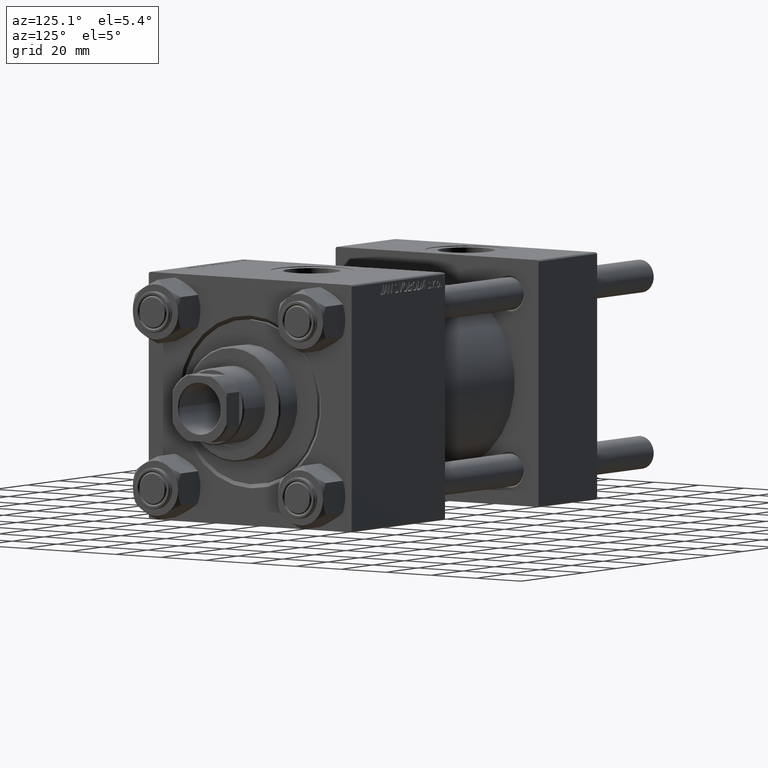
[diagram: clean part render]
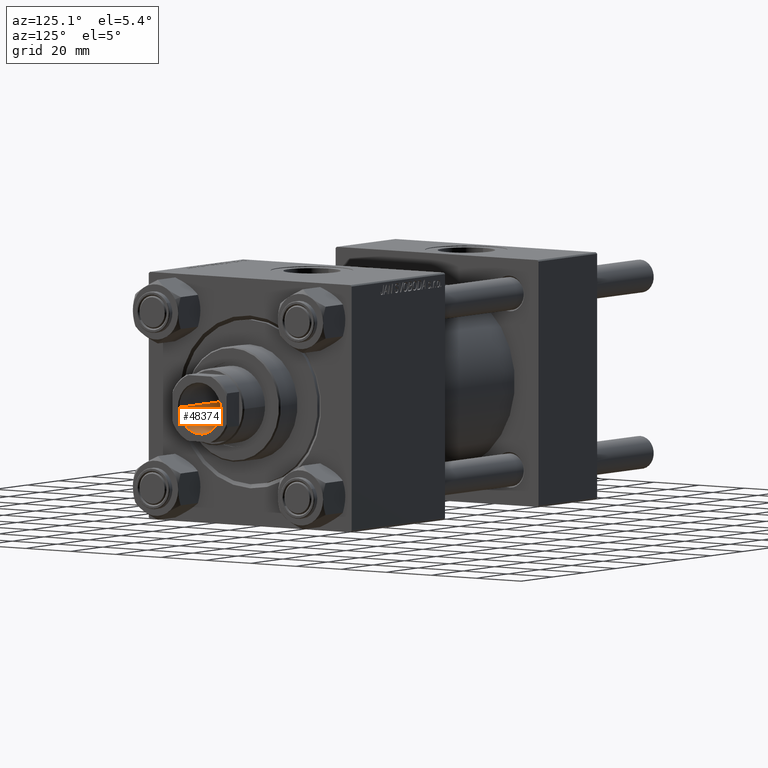
[diagram: same view with one face highlighted and labeled with its STEP entity id]
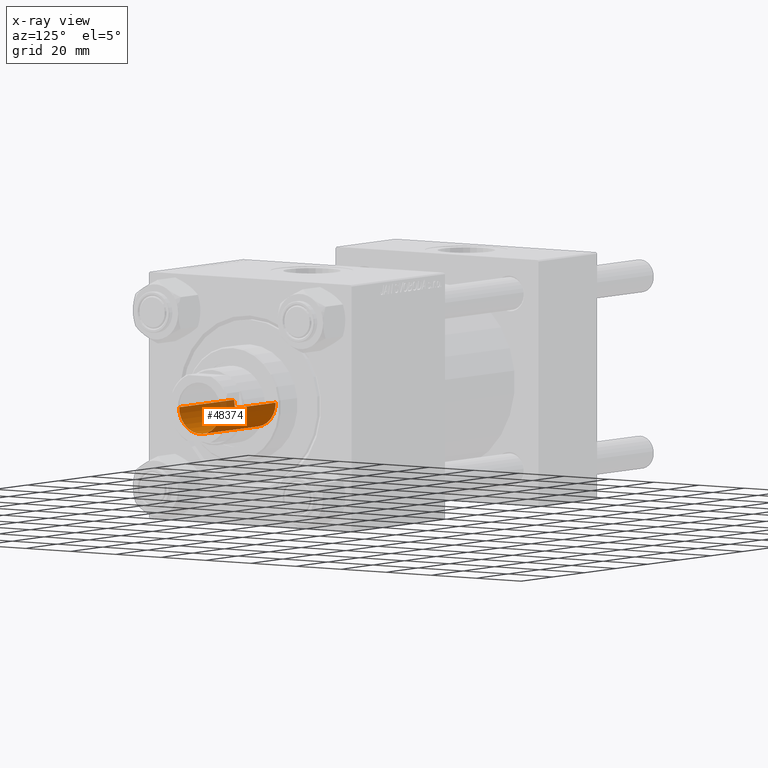
[diagram: x-ray of the same camera — body ghosted, the highlighted face saturated]
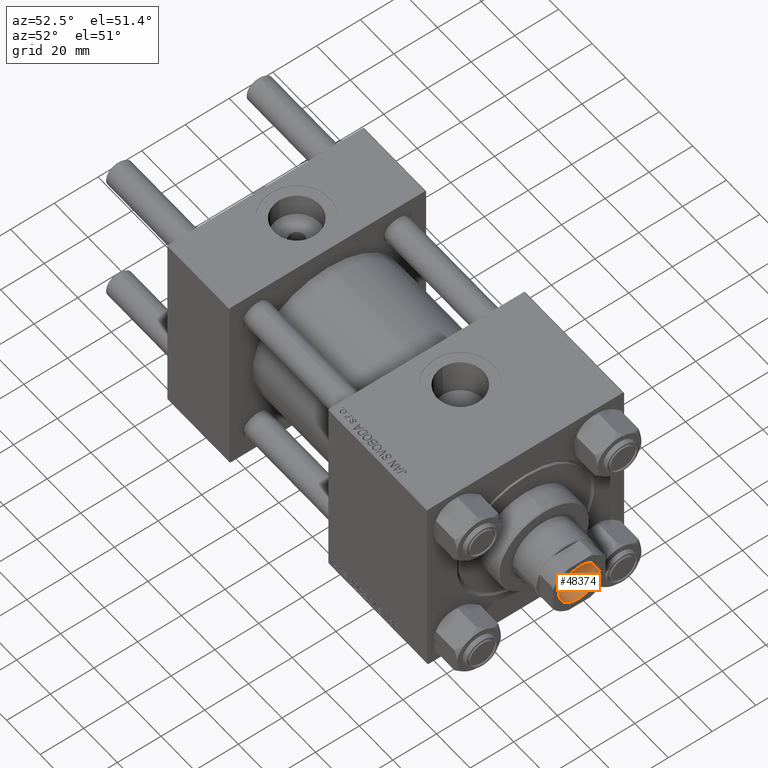
[diagram: same view with one face highlighted and labeled with its STEP entity id]
A machine part, auxiliary view. The second image highlights one B-rep face of the part: STEP entity #48374.
The next image is the same camera in x-ray: the body ghosted, the highlighted face saturated — about 5% of this face is hidden behind the body in this view.
A second angle (auxiliary view) of the same face is appended — the face is thin or edge-on in the first view.
In plain terms, the highlighted cylindrical surface (edge-blend (fillet) strip) has radius 9.25 mm, axis along (1, 0, -0).
Its self-contained STEP definition (entity closure, byte-faithful):
#102 = DIRECTION ( 'NONE',  ( -0.000000000000000000, -0.000000000000000000, 1.000000000000000000 ) ) ;
#1256 = AXIS2_PLACEMENT_3D ( 'NONE', #26770, #38348, #19949 ) ;
#1465 = VECTOR ( 'NONE', #32435, 1000.000000000000000 ) ;
#2106 = VERTEX_POINT ( 'NONE', #5284 ) ;
#2373 = CARTESIAN_POINT ( 'NONE',  ( -9.249999999999994671, 1.132798289211300909E-15, 149.6999999999999886 ) ) ;
#4239 = ORIENTED_EDGE ( 'NONE', *, *, #35023, .T. ) ;
#5284 = CARTESIAN_POINT ( 'NONE',  ( 9.249999999999992895, 0.000000000000000000, 114.9999999999999858 ) ) ;
#5879 = EDGE_LOOP ( 'NONE', ( #28997, #18508, #30102, #4239 ) ) ;
#6932 = DIRECTION ( 'NONE',  ( -0.000000000000000000, -0.000000000000000000, 1.000000000000000000 ) ) ;
#8135 = FACE_OUTER_BOUND ( 'NONE', #5879, .T. ) ;
#10778 = VECTOR ( 'NONE', #102, 1000.000000000000000 ) ;
#14905 = CIRCLE ( 'NONE', #1256, 9.249999999999994671 ) ;
#18194 = EDGE_CURVE ( 'NONE', #2106, #21786, #39465, .T. ) ;
#18508 = ORIENTED_EDGE ( 'NONE', *, *, #18194, .F. ) ;
#19000 = CARTESIAN_POINT ( 'NONE',  ( 0.000000000000000000, 0.000000000000000000, 114.9999999999999858 ) ) ;
#19949 = DIRECTION ( 'NONE',  ( 1.000000000000000000, 0.000000000000000000, 0.000000000000000000 ) ) ;
#19955 = DIRECTION ( 'NONE',  ( -0.000000000000000000, -0.000000000000000000, 1.000000000000000000 ) ) ;
#20124 = VERTEX_POINT ( 'NONE', #2373 ) ;
#21786 = VERTEX_POINT ( 'NONE', #27291 ) ;
#26770 = CARTESIAN_POINT ( 'NONE',  ( 0.000000000000000000, 0.000000000000000000, 149.6999999999999886 ) ) ;
#27021 = CARTESIAN_POINT ( 'NONE',  ( 9.249999999999994671, 0.000000000000000000, 150.0000000000000000 ) ) ;
#27291 = CARTESIAN_POINT ( 'NONE',  ( -9.249999999999992895, 1.132798289211300712E-15, 114.9999999999999858 ) ) ;
#28525 = CARTESIAN_POINT ( 'NONE',  ( 9.249999999999994671, 0.000000000000000000, 149.6999999999999886 ) ) ;
#28997 = ORIENTED_EDGE ( 'NONE', *, *, #44506, .F. ) ;
#30102 = ORIENTED_EDGE ( 'NONE', *, *, #31708, .T. ) ;
#31539 = CARTESIAN_POINT ( 'NONE',  ( 0.000000000000000000, 0.000000000000000000, 150.0000000000000000 ) ) ;
#31708 = EDGE_CURVE ( 'NONE', #2106, #48055, #45242, .T. ) ;
#32435 = DIRECTION ( 'NONE',  ( -0.000000000000000000, -0.000000000000000000, 1.000000000000000000 ) ) ;
#33196 = AXIS2_PLACEMENT_3D ( 'NONE', #31539, #19955, #38848 ) ;
#35023 = EDGE_CURVE ( 'NONE', #48055, #20124, #14905, .T. ) ;
#35073 = CYLINDRICAL_SURFACE ( 'NONE', #33196, 9.249999999999994671 ) ;
#37016 = AXIS2_PLACEMENT_3D ( 'NONE', #19000, #6932, #46187 ) ;
#38348 = DIRECTION ( 'NONE',  ( 0.000000000000000000, 0.000000000000000000, 1.000000000000000000 ) ) ;
#38848 = DIRECTION ( 'NONE',  ( 1.000000000000000000, 0.000000000000000000, 0.000000000000000000 ) ) ;
#39465 = CIRCLE ( 'NONE', #37016, 9.249999999999992895 ) ;
#40995 = LINE ( 'NONE', #44513, #1465 ) ;
#44506 = EDGE_CURVE ( 'NONE', #21786, #20124, #40995, .T. ) ;
#44513 = CARTESIAN_POINT ( 'NONE',  ( -9.249999999999994671, 1.132798289211300909E-15, 150.0000000000000000 ) ) ;
#45242 = LINE ( 'NONE', #27021, #10778 ) ;
#46187 = DIRECTION ( 'NONE',  ( 1.000000000000000000, 0.000000000000000000, 0.000000000000000000 ) ) ;
#48055 = VERTEX_POINT ( 'NONE', #28525 ) ;
#48374 = ADVANCED_FACE ( 'NONE', ( #8135 ), #35073, .F. ) ;